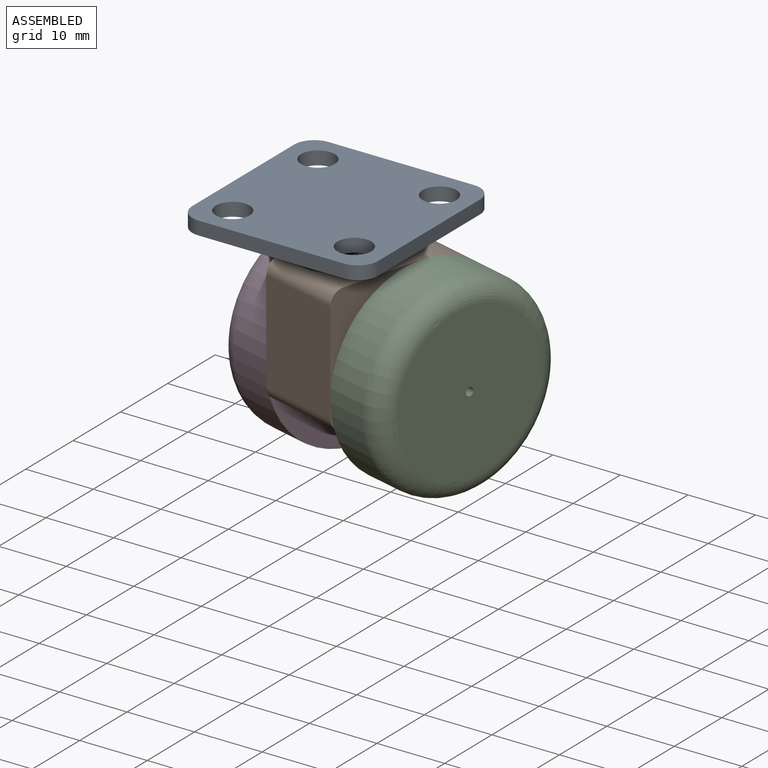
[diagram: assembled view]
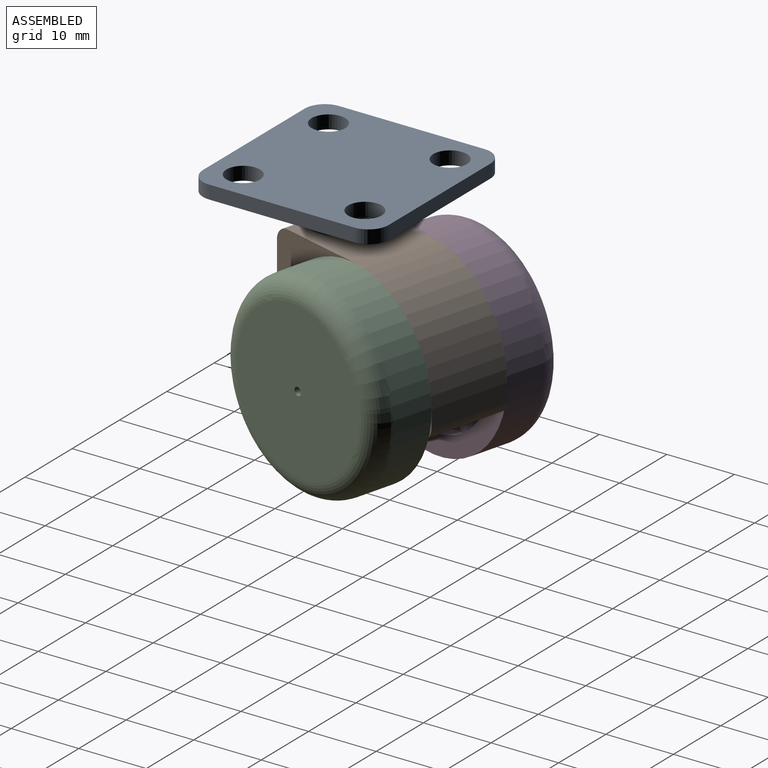
[diagram: assembled view, second angle]
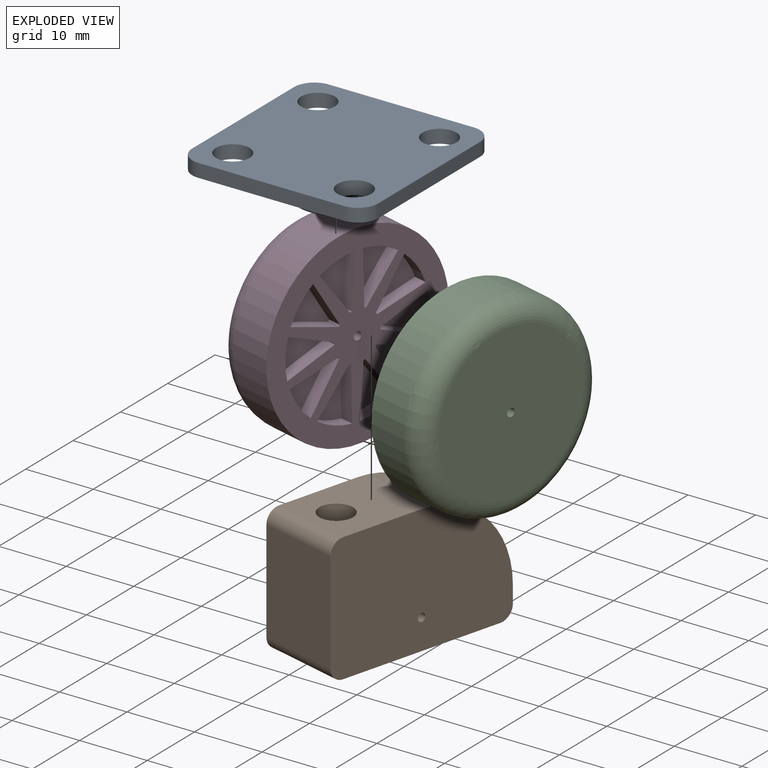
[diagram: exploded view]
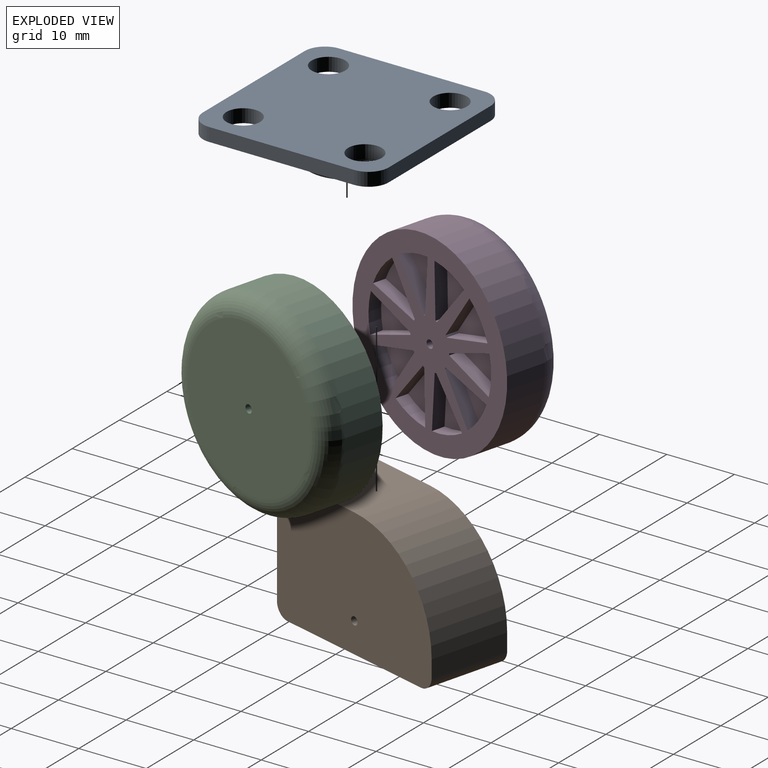
[diagram: exploded view, second angle]
ASSEMBLY  parts=4 mates=3
PART A: 20 faces, bbox 27.5x27.5x8 mm
  f0: plane 21.5x2mm, normal (0,-1,0), area 43mm2, adj f1,f11,f12,f13
  f1: cylinder r=3mm len=3mm, axis (0,0,-1), area 9.4mm2, adj f0,f2,f12,f13
  f2: plane 21.5x2mm, normal (1,0,0), area 43mm2, adj f1,f3,f12,f13
  f3: cylinder r=3mm len=3mm, axis (0,0,-1), area 9.4mm2, adj f2,f4,f12,f13
  f4: plane 21.5x2mm, normal (0,1,0), area 43mm2, adj f3,f5,f12,f13
  f5: cylinder r=3mm len=3mm, axis (0,0,-1), area 9.4mm2, adj f4,f6,f12,f13
  f6: plane 21.5x2mm, normal (-1,0,0), area 43mm2, adj f5,f11,f12,f13
  f7: cylinder r=2.5mm len=5mm, axis (0,0,-1), area 31.4mm2, adj f12,f13
  f8: cylinder r=2.5mm len=5mm, axis (0,0,-1), area 31.4mm2, adj f12,f13
  f9: cylinder r=2.5mm len=5mm, axis (0,0,-1), area 31.4mm2, adj f12,f13
  f10: cylinder r=2.5mm len=5mm, axis (0,0,-1), area 31.4mm2, adj f12,f13
  f11: cylinder r=3mm len=3mm, axis (0,0,-1), area 9.4mm2, adj f0,f6,f12,f13
  f12: plane 27.5x27.5mm, normal (0,0,1), area 670mm2, adj f0,f1,f2,f3,f4,f5,f6,f7
  f13: plane 27.5x27.5mm, normal (0,0,-1), area 443mm2, adj f0,f1,f2,f3,f4,f5,f6,f7
  f14: cone r=8.5mm half-angle=53deg, axis (0,0,1), area 203.9mm2, adj f13,f15
  f15: plane 10.04x10.04mm, normal (0,0,1), area 15mm2, adj f14,f17
  f16: plane 10.04x10.04mm, normal (0,0,-1), area 59.5mm2, adj f17,f18
  f17: torus R=5.02mm, axis (0,0,-1), area 111.6mm2, adj f15,f16
  f18: cylinder r=2.5mm len=5mm, axis (0,0,1), area 15.7mm2, adj f16,f19
  f19: plane 5x5mm, normal (0,0,-1), area 19.6mm2, adj f18
PART B: 12 faces, bbox 12x29x19 mm
  f0: plane 29x19mm, normal (1,0,0), area 502.2mm2, adj f1,f2,f4,f6,f7,f8,f9,f10
  f1: plane 12.5x12mm, normal (0,0,1), area 130.4mm2, adj f0,f3,f5,f7,f9
  f2: plane 15x12mm, normal (0,-1,0), area 180mm2, adj f0,f3,f9,f11
  f3: plane 29x19mm, normal (-1,0,0), area 502.2mm2, adj f1,f2,f4,f6,f7,f8,f9,f10
  f4: plane 12x2.5mm, normal (0,1,0), area 30mm2, adj f0,f3,f7,f10
  f5: cylinder r=2.5mm len=19mm, axis (0,0,1), area 298.5mm2, adj f1,f6
  f6: plane 25x12mm, normal (0,0,-1), area 280.4mm2, adj f0,f3,f5,f10,f11
  f7: cylinder r=14.5mm len=14.5mm, axis (1,0,0), area 273.3mm2, adj f0,f1,f3,f4
  f8: cylinder r=0.6mm len=12mm, axis (1,0,0), area 45.2mm2, adj f0,f3
  f9: cylinder r=2mm len=12mm, axis (-1,0,0), area 37.7mm2, adj f0,f1,f2,f3
  f10: cylinder r=2mm len=12mm, axis (-1,0,0), area 37.7mm2, adj f0,f3,f4,f6
  f11: cylinder r=2mm len=12mm, axis (1,0,0), area 37.7mm2, adj f0,f2,f3,f6
PART C: 55 faces, bbox 9x31.4x31.4 mm
  f0: plane 29x29mm, normal (-1,0,0), area 413mm2, adj f1,f2,f5,f6,f7,f8,f10,f11
  f1: cylinder r=0.6mm len=9mm, axis (-1,0,0), area 33.9mm2, adj f0,f3
  f2: cylinder r=14.5mm len=29mm, axis (-1,0,0), area 546.6mm2, adj f0,f4
  f3: plane 23x23mm, normal (1,0,0), area 414.3mm2, adj f1,f4
  f4: torus R=11.5mm, axis (1,0,0), area 397.1mm2, adj f2,f3
  f5: cylinder r=3.65mm len=2mm, axis (-1,0,0), area 0.6mm2, adj f0,f6,f8,f9
  f6: plane 6.24x4.97mm, normal (0,0.78,0.62), area 16mm2, adj f0,f5,f7,f9
  f7: cylinder r=11.5mm len=5.6mm, axis (-1,0,0), area 11.9mm2, adj f0,f6,f8,f9
  f8: plane 7.97x2mm, normal (0,-1,0.04), area 16mm2, adj f0,f5,f7,f9
  f9: plane 8.06x5.6mm, normal (-1,0,0), area 24.6mm2, adj f5,f6,f7,f8
  f10: plane 6.65x4.4mm, normal (0,-0.83,-0.55), area 16mm2, adj f0,f11,f13,f14
  f11: cylinder r=3.65mm len=2mm, axis (-1,0,0), area 0.6mm2, adj f0,f10,f12,f14
  f12: plane 7.69x2.13mm, normal (0,0.27,0.96), area 16mm2, adj f0,f11,f13,f14
  f13: cylinder r=11.5mm len=4.77mm, axis (-1,0,0), area 11.9mm2, adj f0,f10,f12,f14
  f14: plane 7.86x6.9mm, normal (-1,0,0), area 24.6mm2, adj f10,f11,f12,f13
  f15: plane 7.47x2.8mm, normal (0,0.35,0.94), area 16mm2, adj f0,f16,f18,f19
  f16: cylinder r=3.65mm len=2mm, axis (-1,0,0), area 0.6mm2, adj f0,f15,f17,f19
  f17: plane 7.47x2.8mm, normal (0,0.35,-0.94), area 16mm2, adj f0,f16,f18,f19
  f18: cylinder r=11.5mm len=5.89mm, axis (-1,0,0), area 11.9mm2, adj f0,f15,f17,f19
  f19: plane 7.86x5.89mm, normal (-1,0,0), area 24.6mm2, adj f15,f16,f17,f18
  f20: plane 6.65x4.4mm, normal (0,0.83,0.55), area 16mm2, adj f0,f21,f23,f24
  f21: cylinder r=3.65mm len=2mm, axis (-1,0,0), area 0.6mm2, adj f0,f20,f22,f24
  f22: plane 7.69x2.13mm, normal (0,-0.27,-0.96), area 16mm2, adj f0,f21,f23,f24
  f23: cylinder r=11.5mm len=4.77mm, axis (-1,0,0), area 11.9mm2, adj f0,f20,f22,f24
  f24: plane 7.86x6.9mm, normal (-1,0,0), area 24.6mm2, adj f20,f21,f22,f23
  f25: plane 6.24x4.97mm, normal (0,-0.78,0.62), area 16mm2, adj f0,f26,f28,f29
  f26: cylinder r=3.65mm len=2mm, axis (-1,0,0), area 0.6mm2, adj f0,f25,f27,f29
  f27: plane 7.97x2mm, normal (0,1,0.04), area 16mm2, adj f0,f26,f28,f29
  f28: cylinder r=11.5mm len=5.6mm, axis (-1,0,0), area 11.9mm2, adj f0,f25,f27,f29
  f29: plane 8.06x5.6mm, normal (-1,0,0), area 24.6mm2, adj f25,f26,f27,f28
  f30: plane 7.69x2.13mm, normal (0,-0.27,0.96), area 16mm2, adj f0,f31,f33,f34
  f31: cylinder r=3.65mm len=2mm, axis (-1,0,0), area 0.6mm2, adj f0,f30,f32,f34
  f32: plane 6.65x4.4mm, normal (0,0.83,-0.55), area 16mm2, adj f0,f31,f33,f34
  f33: cylinder r=11.5mm len=4.77mm, axis (-1,0,0), area 11.9mm2, adj f0,f30,f32,f34
  f34: plane 7.86x6.9mm, normal (-1,0,0), area 24.6mm2, adj f30,f31,f32,f33
  f35: plane 7.69x2.13mm, normal (0,0.27,-0.96), area 16mm2, adj f0,f36,f38,f39
  f36: cylinder r=3.65mm len=2mm, axis (-1,0,0), area 0.6mm2, adj f0,f35,f37,f39
  f37: plane 6.65x4.4mm, normal (0,-0.83,0.55), area 16mm2, adj f0,f36,f38,f39
  f38: cylinder r=11.5mm len=4.77mm, axis (-1,0,0), area 11.9mm2, adj f0,f35,f37,f39
  f39: plane 7.86x6.9mm, normal (-1,0,0), area 24.6mm2, adj f35,f36,f37,f38
  f40: plane 7.47x2.8mm, normal (0,-0.35,-0.94), area 16mm2, adj f0,f41,f43,f44
  f41: cylinder r=3.65mm len=2mm, axis (-1,0,0), area 0.6mm2, adj f0,f40,f42,f44
  f42: plane 7.47x2.8mm, normal (0,-0.35,0.94), area 16mm2, adj f0,f41,f43,f44
  f43: cylinder r=11.5mm len=5.89mm, axis (-1,0,0), area 11.9mm2, adj f0,f40,f42,f44
  f44: plane 7.86x5.89mm, normal (-1,0,0), area 24.6mm2, adj f40,f41,f42,f43
  f45: plane 6.24x4.97mm, normal (0,0.78,-0.62), area 16mm2, adj f0,f46,f48,f49
  f46: cylinder r=3.65mm len=2mm, axis (-1,0,0), area 0.6mm2, adj f0,f45,f47,f49
  f47: plane 7.97x2mm, normal (0,-1,-0.04), area 16mm2, adj f0,f46,f48,f49
  f48: cylinder r=11.5mm len=5.6mm, axis (-1,0,0), area 11.9mm2, adj f0,f45,f47,f49
  f49: plane 8.06x5.6mm, normal (-1,0,0), area 24.6mm2, adj f45,f46,f47,f48
  f50: plane 7.97x2mm, normal (0,1,-0.04), area 16mm2, adj f0,f51,f53,f54
  f51: cylinder r=3.65mm len=2mm, axis (-1,0,0), area 0.6mm2, adj f0,f50,f52,f54
  f52: plane 6.24x4.97mm, normal (0,-0.78,-0.62), area 16mm2, adj f0,f51,f53,f54
  f53: cylinder r=11.5mm len=5.6mm, axis (-1,0,0), area 11.9mm2, adj f0,f50,f52,f54
  f54: plane 8.06x5.6mm, normal (-1,0,0), area 24.6mm2, adj f50,f51,f52,f53
PART D: same geometry as C
PLACE A t=(-17.52,-23.62,7.49)mm fixed
PLACE B rot(axis=(0,0,-1),14.7deg) t=(-17.52,-23.62,7.49)mm
PLACE C rot(axis=(-0.95,0.12,-0.3),46.1deg) t=(-13.31,-7.59,7.66)mm
PLACE D rot(axis=(0.1,0.81,0.58),171.5deg) t=(-11.15,0.63,-27.77)mm
MATE revolute B.f7 <-> C.f5  axis (0.97,-0.25,0) through (-9.55,-16.92,-13.01)mm
MATE revolute A.f14 <-> B.f5  axis (0,0,-1) through (-17.52,-23.62,1.49)mm
MATE revolute D.f5 <-> B.f7  axis (0.97,-0.25,0) through (-21.16,-13.87,-13.01)mm
